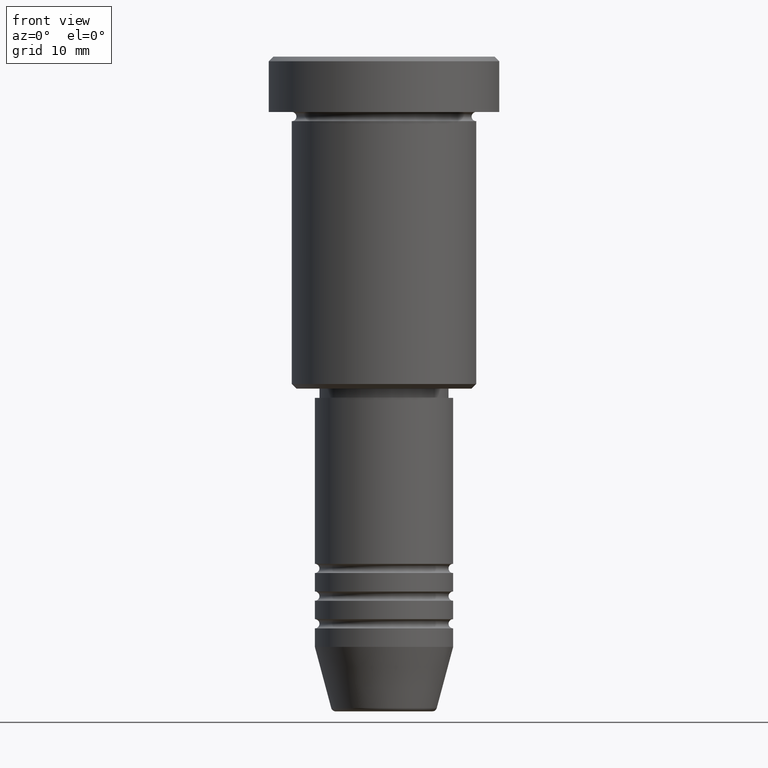
[diagram: clean part render]
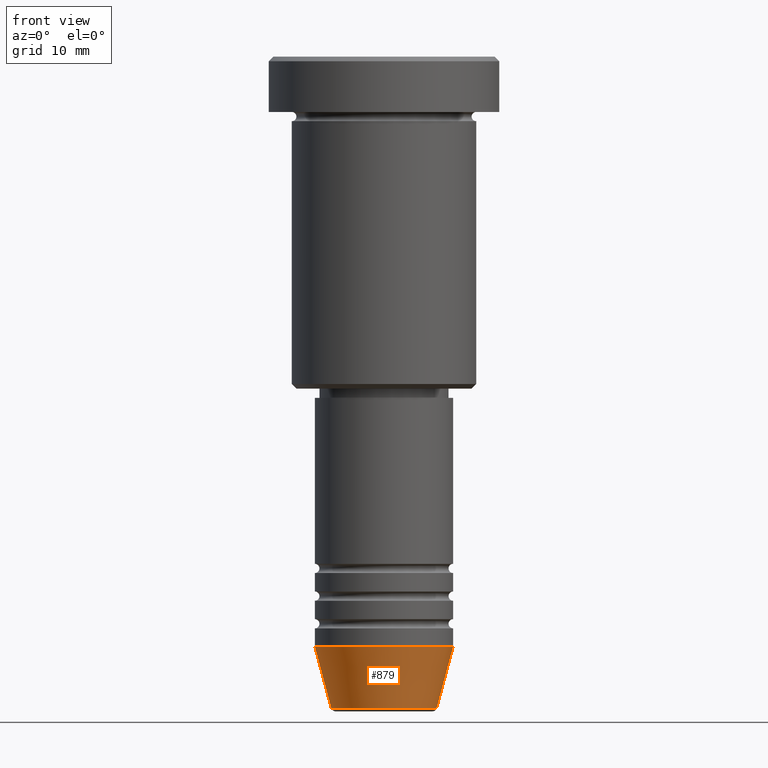
[diagram: same view with one face highlighted and labeled with its STEP entity id]
A machine part, front view. The second image highlights one B-rep face of the part: STEP entity #879.
In plain terms, the highlighted conical surface has half-angle 15 deg.
Its self-contained STEP definition (entity closure, byte-faithful):
#80 = AXIS2_PLACEMENT_3D ( 'NONE', #1171, #531, #436 ) ;
#83 = VECTOR ( 'NONE', #134, 1000.000000000000000 ) ;
#128 = VERTEX_POINT ( 'NONE', #1010 ) ;
#134 = DIRECTION ( 'NONE',  ( 0.2588190451025213501, 0.000000000000000000, 0.9659258262890680902 ) ) ;
#177 = CARTESIAN_POINT ( 'NONE',  ( 5.723655072137191269, 0.000000000000000000, -70.62940952255127058 ) ) ;
#209 = CONICAL_SURFACE ( 'NONE', #392, 7.500000000000000000, 0.2617993877991500740 ) ;
#233 = EDGE_LOOP ( 'NONE', ( #701, #415, #445, #1135 ) ) ;
#254 = DIRECTION ( 'NONE',  ( 1.000000000000000000, 0.000000000000000000, 0.000000000000000000 ) ) ;
#256 = VERTEX_POINT ( 'NONE', #344 ) ;
#267 = DIRECTION ( 'NONE',  ( -0.000000000000000000, -0.000000000000000000, 1.000000000000000000 ) ) ;
#268 = EDGE_CURVE ( 'NONE', #341, #256, #501, .T. ) ;
#282 = CIRCLE ( 'NONE', #80, 5.723655072137191269 ) ;
#307 = CIRCLE ( 'NONE', #472, 7.500000000000000000 ) ;
#341 = VERTEX_POINT ( 'NONE', #698 ) ;
#344 = CARTESIAN_POINT ( 'NONE',  ( -7.500000000000000000, 9.184850993605147944E-16, -64.00000000000000000 ) ) ;
#392 = AXIS2_PLACEMENT_3D ( 'NONE', #1074, #267, #254 ) ;
#401 = DIRECTION ( 'NONE',  ( 1.000000000000000000, 0.000000000000000000, 0.000000000000000000 ) ) ;
#415 = ORIENTED_EDGE ( 'NONE', *, *, #430, .T. ) ;
#423 = DIRECTION ( 'NONE',  ( -0.2588190451025213501, 3.169619151431772337E-17, 0.9659258262890680902 ) ) ;
#430 = EDGE_CURVE ( 'NONE', #341, #871, #282, .T. ) ;
#436 = DIRECTION ( 'NONE',  ( 1.000000000000000000, 0.000000000000000000, 0.000000000000000000 ) ) ;
#445 = ORIENTED_EDGE ( 'NONE', *, *, #547, .T. ) ;
#472 = AXIS2_PLACEMENT_3D ( 'NONE', #681, #594, #401 ) ;
#501 = LINE ( 'NONE', #526, #725 ) ;
#526 = CARTESIAN_POINT ( 'NONE',  ( -7.500000000000000000, 9.184850993605147944E-16, -64.00000000000000000 ) ) ;
#531 = DIRECTION ( 'NONE',  ( -0.000000000000000000, -0.000000000000000000, 1.000000000000000000 ) ) ;
#547 = EDGE_CURVE ( 'NONE', #871, #128, #592, .T. ) ;
#592 = LINE ( 'NONE', #949, #83 ) ;
#594 = DIRECTION ( 'NONE',  ( -0.000000000000000000, -0.000000000000000000, 1.000000000000000000 ) ) ;
#615 = EDGE_CURVE ( 'NONE', #256, #128, #307, .T. ) ;
#681 = CARTESIAN_POINT ( 'NONE',  ( 0.000000000000000000, 0.000000000000000000, -64.00000000000000000 ) ) ;
#698 = CARTESIAN_POINT ( 'NONE',  ( -5.723655072137190380, 8.097153428560735915E-16, -70.62940952255127058 ) ) ;
#701 = ORIENTED_EDGE ( 'NONE', *, *, #268, .F. ) ;
#725 = VECTOR ( 'NONE', #423, 1000.000000000000000 ) ;
#871 = VERTEX_POINT ( 'NONE', #177 ) ;
#879 = ADVANCED_FACE ( 'NONE', ( #886 ), #209, .T. ) ;
#886 = FACE_OUTER_BOUND ( 'NONE', #233, .T. ) ;
#949 = CARTESIAN_POINT ( 'NONE',  ( 7.500000000000000000, 0.000000000000000000, -64.00000000000000000 ) ) ;
#1010 = CARTESIAN_POINT ( 'NONE',  ( 7.500000000000000000, 0.000000000000000000, -64.00000000000000000 ) ) ;
#1074 = CARTESIAN_POINT ( 'NONE',  ( 0.000000000000000000, 0.000000000000000000, -64.00000000000000000 ) ) ;
#1135 = ORIENTED_EDGE ( 'NONE', *, *, #615, .F. ) ;
#1171 = CARTESIAN_POINT ( 'NONE',  ( 0.000000000000000000, 0.000000000000000000, -70.62940952255127058 ) ) ;